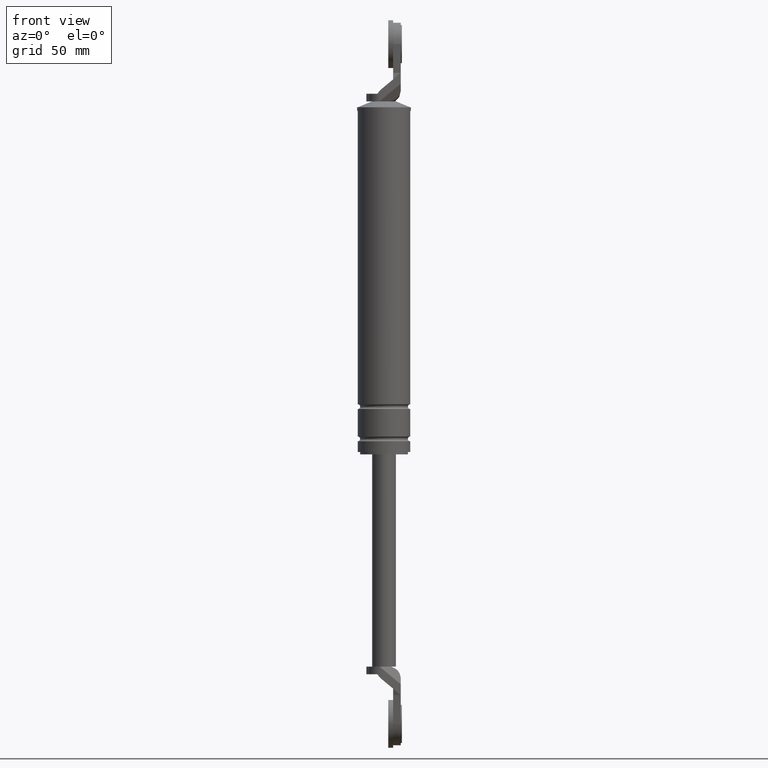
[diagram: clean part render]
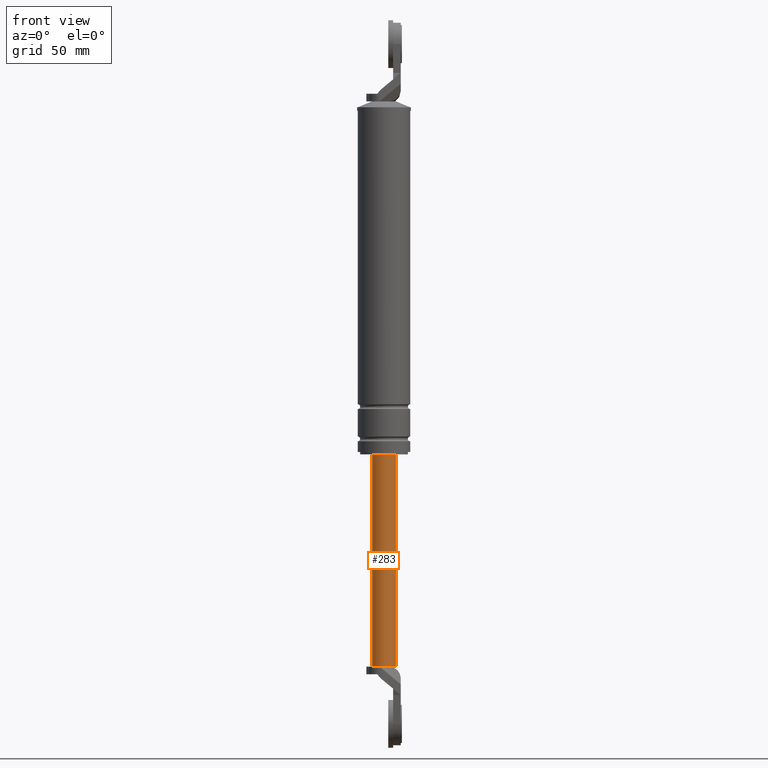
[diagram: same view with one face highlighted and labeled with its STEP entity id]
A machine part, front view. The second image highlights one B-rep face of the part: STEP entity #283.
In plain terms, the highlighted cylindrical surface (edge-blend (fillet) strip) has radius 5 mm, axis along (0, 0, 1).
Its self-contained STEP definition (entity closure, byte-faithful):
#283=ADVANCED_FACE('',(#1089),#1088,.T.);
#1088=CYLINDRICAL_SURFACE('',#1763,5.00000000000E+000);
#1089=FACE_OUTER_BOUND('',#1764,.T.);
#1760=CARTESIAN_POINT('',(0.00000000000E+000,3.58204186421E-014,0.00000000000E+000));
#1761=DIRECTION('',(-0.00000000000E+000,-0.00000000000E+000,1.00000000000E+000));
#1762=DIRECTION('',(-1.00000000000E+000,1.22464679915E-016,0.00000000000E+000));
#1763=AXIS2_PLACEMENT_3D('',#1760,#1761,#1762);
#1764=EDGE_LOOP('',(#2162,#2163,#2164,#2165,#2166));
#2162=ORIENTED_EDGE('',*,*,#2340,.F.);
#2163=ORIENTED_EDGE('',*,*,#2376,.F.);
#2164=ORIENTED_EDGE('',*,*,#2373,.F.);
#2165=ORIENTED_EDGE('',*,*,#2345,.F.);
#2166=ORIENTED_EDGE('',*,*,#2377,.T.);
#2340=EDGE_CURVE('',#3443,#3442,#3450,.T.);
#2345=EDGE_CURVE('',#3478,#3456,#3485,.T.);
#2373=EDGE_CURVE('',#3456,#3665,#3666,.T.);
#2376=EDGE_CURVE('',#3665,#3443,#3684,.T.);
#2377=EDGE_CURVE('',#3478,#3442,#3690,.T.);
#3442=VERTEX_POINT('',#4363);
#3443=VERTEX_POINT('',#4364);
#3450=CIRCLE('',#4372,5.00000000000E+000);
#3456=VERTEX_POINT('',#4373);
#3478=VERTEX_POINT('',#4387);
#3485=CIRCLE('',#4395,5.00000000000E+000);
#3665=VERTEX_POINT('',#4494);
#3666=CIRCLE('',#4498,5.00000000000E+000);
#3684=(BOUNDED_CURVE() B_SPLINE_CURVE(1,(#4506,#4507),.UNSPECIFIED.,.F.,.F.) B_SPLINE_CURVE_WITH_KNOTS((2,2),(8.33333332085E-002,9.16666666563E-001),.UNSPECIFIED.) CURVE() GEOMETRIC_REPRESENTATION_ITEM() RATIONAL_B_SPLINE_CURVE((1.00000000000E+000,1.00000000000E+000)) REPRESENTATION_ITEM('') );
#3690=(BOUNDED_CURVE() B_SPLINE_CURVE(1,(#4508,#4509),.UNSPECIFIED.,.F.,.F.) B_SPLINE_CURVE_WITH_KNOTS((2,2),(8.33333333333E-002,9.16666666667E-001),.UNSPECIFIED.) CURVE() GEOMETRIC_REPRESENTATION_ITEM() RATIONAL_B_SPLINE_CURVE((7.50000000000E-001,7.50000000000E-001)) REPRESENTATION_ITEM('') );
#4363=CARTESIAN_POINT('',(5.00000000000E+000,3.58204186421E-014,-5.90000150000E+001));
#4364=CARTESIAN_POINT('',(-5.00000000000E+000,3.58231962612E-014,-5.90000150000E+001));
#4369=CARTESIAN_POINT('',(0.00000000000E+000,3.58204186421E-014,-5.90000150000E+001));
#4370=DIRECTION('',(0.00000000000E+000,0.00000000000E+000,1.00000000000E+000));
#4371=DIRECTION('',(1.00000000000E+000,-1.22460635382E-016,0.00000000000E+000));
#4372=AXIS2_PLACEMENT_3D('',#4369,#4370,#4371);
#4373=CARTESIAN_POINT('',(2.00000000000E+000,-4.58257569496E+000,-1.48000015000E+002));
#4387=CARTESIAN_POINT('',(5.00000000000E+000,2.22686622283E-006,-1.48000015000E+002));
#4392=CARTESIAN_POINT('',(0.00000000000E+000,3.58204186421E-014,-1.48000015000E+002));
#4393=DIRECTION('',(0.00000000000E+000,0.00000000000E+000,-1.00000000000E+000));
#4394=DIRECTION('',(4.00000000000E-001,9.16515138991E-001,0.00000000000E+000));
#4395=AXIS2_PLACEMENT_3D('',#4392,#4393,#4394);
#4494=CARTESIAN_POINT('',(-5.00000000000E+000,-1.92829151968E-008,-1.48000015000E+002));
#4495=CARTESIAN_POINT('',(0.00000000000E+000,3.58204186421E-014,-1.48000015000E+002));
#4496=DIRECTION('',(0.00000000000E+000,0.00000000000E+000,-1.00000000000E+000));
#4497=DIRECTION('',(1.00000000000E+000,-0.00000000000E+000,-0.00000000000E+000));
#4498=AXIS2_PLACEMENT_3D('',#4495,#4496,#4497);
#4506=CARTESIAN_POINT('',(-5.00000000000E+000,3.64327420417E-014,-1.48000015013E+002));
#4507=CARTESIAN_POINT('',(-5.00000000000E+000,3.64327420417E-014,-5.90000150111E+001));
#4508=CARTESIAN_POINT('',(5.00000000000E+000,3.55271367880E-014,-1.48000015000E+002));
#4509=CARTESIAN_POINT('',(5.00000000000E+000,3.55271367880E-014,-5.90000150000E+001));